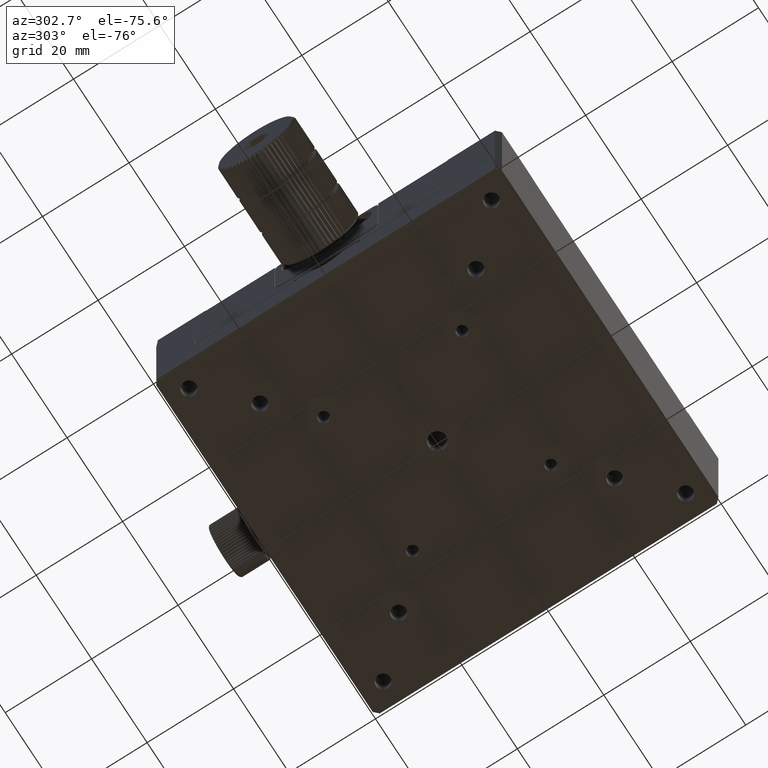
[diagram: clean part render]
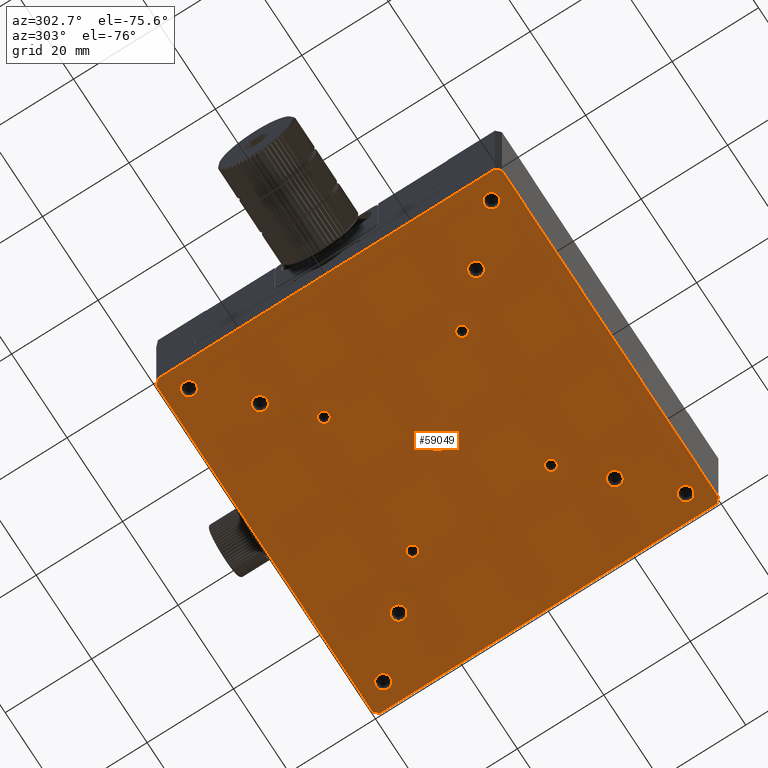
[diagram: same view with one face highlighted and labeled with its STEP entity id]
A machine part, auxiliary view. The second image highlights one B-rep face of the part: STEP entity #59049.
In plain terms, the highlighted planar face has unit normal (0, 0, -1).
Its self-contained STEP definition (entity closure, byte-faithful):
#300 = CARTESIAN_POINT ( 'NONE',  ( 34.99999999999998579, 34.99999999999999289, 130.0000000000000568 ) ) ;
#830 = EDGE_LOOP ( 'NONE', ( #80135 ) ) ;
#983 = DIRECTION ( 'NONE',  ( -2.775557561562891351E-16, -0.000000000000000000, 1.000000000000000000 ) ) ;
#1572 = CIRCLE ( 'NONE', #20015, 1.249999999999997558 ) ;
#1858 = EDGE_CURVE ( 'NONE', #68728, #68728, #1572, .T. ) ;
#2589 = VERTEX_POINT ( 'NONE', #29412 ) ;
#3653 = VERTEX_POINT ( 'NONE', #56900 ) ;
#3684 = CARTESIAN_POINT ( 'NONE',  ( 24.99999999999997158, 24.99999999999999289, 130.0000000000000568 ) ) ;
#3788 = VERTEX_POINT ( 'NONE', #41767 ) ;
#4898 = FACE_BOUND ( 'NONE', #75570, .T. ) ;
#4947 = EDGE_CURVE ( 'NONE', #40162, #40162, #10067, .T. ) ;
#6249 = CARTESIAN_POINT ( 'NONE',  ( 14.74999999999996803, 16.00000000000000000, 130.0000000000000568 ) ) ;
#6409 = VECTOR ( 'NONE', #69767, 1000.000000000000000 ) ;
#7252 = EDGE_LOOP ( 'NONE', ( #11186 ) ) ;
#7362 = EDGE_CURVE ( 'NONE', #31241, #31241, #18019, .T. ) ;
#7863 = DIRECTION ( 'NONE',  ( -2.775557561562891351E-16, -0.000000000000000000, 1.000000000000000000 ) ) ;
#8135 = AXIS2_PLACEMENT_3D ( 'NONE', #300, #19662, #63787 ) ;
#8661 = AXIS2_PLACEMENT_3D ( 'NONE', #19040, #44185, #19447 ) ;
#9005 = LINE ( 'NONE', #52291, #33538 ) ;
#9314 = ORIENTED_EDGE ( 'NONE', *, *, #58677, .T. ) ;
#9464 = EDGE_CURVE ( 'NONE', #81104, #26008, #14150, .T. ) ;
#9875 = AXIS2_PLACEMENT_3D ( 'NONE', #72209, #78409, #42097 ) ;
#10067 = CIRCLE ( 'NONE', #11423, 1.649999999999995248 ) ;
#10386 = EDGE_LOOP ( 'NONE', ( #17789 ) ) ;
#10697 = FACE_BOUND ( 'NONE', #45147, .T. ) ;
#10968 = EDGE_LOOP ( 'NONE', ( #77811 ) ) ;
#11186 = ORIENTED_EDGE ( 'NONE', *, *, #75827, .T. ) ;
#11423 = AXIS2_PLACEMENT_3D ( 'NONE', #51042, #25090, #25920 ) ;
#11523 = FACE_BOUND ( 'NONE', #7252, .T. ) ;
#11926 = PLANE ( 'NONE',  #77738 ) ;
#11966 = AXIS2_PLACEMENT_3D ( 'NONE', #46994, #72158, #61407 ) ;
#12510 = ORIENTED_EDGE ( 'NONE', *, *, #18190, .T. ) ;
#13531 = ORIENTED_EDGE ( 'NONE', *, *, #61982, .T. ) ;
#13676 = VERTEX_POINT ( 'NONE', #51589 ) ;
#14150 = LINE ( 'NONE', #39326, #65613 ) ;
#14198 = CARTESIAN_POINT ( 'NONE',  ( 38.99999999999998579, 39.99999999999997158, 130.0000000000000568 ) ) ;
#14227 = AXIS2_PLACEMENT_3D ( 'NONE', #61618, #73981, #42653 ) ;
#14457 = DIRECTION ( 'NONE',  ( -1.000000000000000000, 0.000000000000000000, 0.000000000000000000 ) ) ;
#14458 = EDGE_CURVE ( 'NONE', #58706, #58706, #31910, .T. ) ;
#15236 = EDGE_CURVE ( 'NONE', #64079, #64079, #16151, .T. ) ;
#15691 = DIRECTION ( 'NONE',  ( -2.775557561562891351E-16, -0.000000000000000000, 1.000000000000000000 ) ) ;
#15859 = CIRCLE ( 'NONE', #44794, 1.999999999999999112 ) ;
#16151 = CIRCLE ( 'NONE', #58298, 1.649999999999995248 ) ;
#16669 = ORIENTED_EDGE ( 'NONE', *, *, #49726, .F. ) ;
#16904 = DIRECTION ( 'NONE',  ( -1.000000000000000000, 0.000000000000000000, -2.775557561562891351E-16 ) ) ;
#17789 = ORIENTED_EDGE ( 'NONE', *, *, #24135, .T. ) ;
#17887 = EDGE_LOOP ( 'NONE', ( #40882 ) ) ;
#18019 = CIRCLE ( 'NONE', #69402, 1.649999999999998579 ) ;
#18190 = EDGE_CURVE ( 'NONE', #51031, #71711, #9005, .T. ) ;
#18487 = CARTESIAN_POINT ( 'NONE',  ( -16.00000000000003553, 16.00000000000000000, 130.0000000000000568 ) ) ;
#18860 = LINE ( 'NONE', #63366, #46872 ) ;
#19040 = CARTESIAN_POINT ( 'NONE',  ( 34.99999999999997868, -35.00000000000000711, 130.0000000000000568 ) ) ;
#19447 = DIRECTION ( 'NONE',  ( -1.000000000000000000, 0.000000000000000000, 0.000000000000000000 ) ) ;
#19662 = DIRECTION ( 'NONE',  ( -2.775557561562891351E-16, -0.000000000000000000, 1.000000000000000000 ) ) ;
#19823 = CARTESIAN_POINT ( 'NONE',  ( 24.99999999999997513, -25.00000000000000000, 130.0000000000000568 ) ) ;
#20015 = AXIS2_PLACEMENT_3D ( 'NONE', #18487, #43634, #68799 ) ;
#20148 = CARTESIAN_POINT ( 'NONE',  ( -39.00000000000007105, 39.99999999999997158, 130.0000000000000284 ) ) ;
#22005 = DIRECTION ( 'NONE',  ( -1.000000000000000000, 0.000000000000000000, 0.000000000000000000 ) ) ;
#22389 = DIRECTION ( 'NONE',  ( 0.000000000000000000, 1.000000000000000000, 0.000000000000000000 ) ) ;
#22563 = LINE ( 'NONE', #77462, #44451 ) ;
#22647 = ORIENTED_EDGE ( 'NONE', *, *, #56555, .T. ) ;
#23080 = FACE_BOUND ( 'NONE', #10968, .T. ) ;
#23454 = ORIENTED_EDGE ( 'NONE', *, *, #9464, .T. ) ;
#23865 = VECTOR ( 'NONE', #60543, 1000.000000000000114 ) ;
#24001 = ORIENTED_EDGE ( 'NONE', *, *, #35638, .F. ) ;
#24024 = VERTEX_POINT ( 'NONE', #24436 ) ;
#24121 = DIRECTION ( 'NONE',  ( -2.775557561562891351E-16, -0.000000000000000000, 1.000000000000000000 ) ) ;
#24135 = EDGE_CURVE ( 'NONE', #3788, #3788, #33455, .T. ) ;
#24436 = CARTESIAN_POINT ( 'NONE',  ( -36.65000000000002700, -35.00000000000000000, 130.0000000000000568 ) ) ;
#25027 = CARTESIAN_POINT ( 'NONE',  ( -17.25000000000003197, 16.00000000000000000, 130.0000000000000568 ) ) ;
#25090 = DIRECTION ( 'NONE',  ( -2.775557561562891351E-16, -0.000000000000000000, 1.000000000000000000 ) ) ;
#25290 = ORIENTED_EDGE ( 'NONE', *, *, #81359, .T. ) ;
#25920 = DIRECTION ( 'NONE',  ( -1.000000000000000000, 0.000000000000000000, 0.000000000000000000 ) ) ;
#26008 = VERTEX_POINT ( 'NONE', #14198 ) ;
#26048 = CARTESIAN_POINT ( 'NONE',  ( 39.99999999999997158, -39.00000000000003553, 130.0000000000000568 ) ) ;
#26863 = EDGE_LOOP ( 'NONE', ( #80049 ) ) ;
#28348 = EDGE_LOOP ( 'NONE', ( #9314 ) ) ;
#28486 = FACE_BOUND ( 'NONE', #830, .T. ) ;
#28837 = LINE ( 'NONE', #66718, #23865 ) ;
#28879 = DIRECTION ( 'NONE',  ( -1.000000000000000000, 0.000000000000000000, 0.000000000000000000 ) ) ;
#29412 = CARTESIAN_POINT ( 'NONE',  ( -2.000000000000042188, 0.000000000000000000, 130.0000000000000568 ) ) ;
#29584 = EDGE_CURVE ( 'NONE', #3653, #68292, #73914, .T. ) ;
#29827 = VERTEX_POINT ( 'NONE', #54928 ) ;
#30102 = FACE_BOUND ( 'NONE', #59354, .T. ) ;
#30614 = DIRECTION ( 'NONE',  ( -1.000000000000000000, 0.000000000000000000, 0.000000000000000000 ) ) ;
#31241 = VERTEX_POINT ( 'NONE', #71475 ) ;
#31910 = CIRCLE ( 'NONE', #8135, 1.649999999999998579 ) ;
#32720 = ORIENTED_EDGE ( 'NONE', *, *, #58842, .F. ) ;
#32742 = CIRCLE ( 'NONE', #14227, 1.649999999999995248 ) ;
#33194 = CARTESIAN_POINT ( 'NONE',  ( -40.00000000000002842, -40.00000000000004263, 130.0000000000000284 ) ) ;
#33455 = CIRCLE ( 'NONE', #9875, 1.249999999999997558 ) ;
#33538 = VECTOR ( 'NONE', #47285, 1000.000000000000000 ) ;
#33658 = EDGE_LOOP ( 'NONE', ( #23454, #16669, #12510, #24001, #25290, #46141, #13531, #32720 ) ) ;
#35181 = EDGE_CURVE ( 'NONE', #2589, #2589, #15859, .T. ) ;
#35351 = ORIENTED_EDGE ( 'NONE', *, *, #71434, .T. ) ;
#35638 = EDGE_CURVE ( 'NONE', #56201, #71711, #28837, .T. ) ;
#35778 = CARTESIAN_POINT ( 'NONE',  ( -40.00000000000002842, 39.00000000000000000, 130.0000000000000284 ) ) ;
#38128 = DIRECTION ( 'NONE',  ( -1.000000000000000000, 0.000000000000000000, 0.000000000000000000 ) ) ;
#39234 = CARTESIAN_POINT ( 'NONE',  ( 15.99999999999996625, 16.00000000000000000, 130.0000000000000568 ) ) ;
#39326 = CARTESIAN_POINT ( 'NONE',  ( 39.99999999999997158, 39.99999999999997158, 130.0000000000000568 ) ) ;
#40162 = VERTEX_POINT ( 'NONE', #69139 ) ;
#40457 = FACE_OUTER_BOUND ( 'NONE', #33658, .T. ) ;
#40841 = FACE_BOUND ( 'NONE', #67310, .T. ) ;
#40882 = ORIENTED_EDGE ( 'NONE', *, *, #4947, .T. ) ;
#40901 = CIRCLE ( 'NONE', #64607, 1.249999999999997558 ) ;
#41456 = CARTESIAN_POINT ( 'NONE',  ( -35.00000000000003553, -35.00000000000000000, 130.0000000000000568 ) ) ;
#41767 = CARTESIAN_POINT ( 'NONE',  ( -17.25000000000003197, -16.00000000000000000, 130.0000000000000568 ) ) ;
#42097 = DIRECTION ( 'NONE',  ( -1.000000000000000000, 0.000000000000000000, 0.000000000000000000 ) ) ;
#42305 = ORIENTED_EDGE ( 'NONE', *, *, #35181, .T. ) ;
#42590 = CARTESIAN_POINT ( 'NONE',  ( -40.00000000000002842, -39.00000000000007105, 130.0000000000000568 ) ) ;
#42653 = DIRECTION ( 'NONE',  ( -1.000000000000000000, 0.000000000000000000, 0.000000000000000000 ) ) ;
#43634 = DIRECTION ( 'NONE',  ( -2.775557561562891351E-16, -0.000000000000000000, 1.000000000000000000 ) ) ;
#44000 = DIRECTION ( 'NONE',  ( -0.7071067811865422437, 0.7071067811865529018, 0.000000000000000000 ) ) ;
#44185 = DIRECTION ( 'NONE',  ( -2.775557561562891351E-16, -0.000000000000000000, 1.000000000000000000 ) ) ;
#44451 = VECTOR ( 'NONE', #64668, 1000.000000000000000 ) ;
#44794 = AXIS2_PLACEMENT_3D ( 'NONE', #80836, #66906, #22005 ) ;
#44993 = CARTESIAN_POINT ( 'NONE',  ( 14.74999999999996803, -16.00000000000000000, 130.0000000000000568 ) ) ;
#45147 = EDGE_LOOP ( 'NONE', ( #58748 ) ) ;
#45165 = AXIS2_PLACEMENT_3D ( 'NONE', #41456, #24121, #62036 ) ;
#46141 = ORIENTED_EDGE ( 'NONE', *, *, #29584, .F. ) ;
#46187 = CIRCLE ( 'NONE', #11966, 1.249999999999997558 ) ;
#46192 = CARTESIAN_POINT ( 'NONE',  ( 33.34999999999998721, -35.00000000000000711, 130.0000000000000568 ) ) ;
#46872 = VECTOR ( 'NONE', #44000, 1000.000000000000000 ) ;
#46994 = CARTESIAN_POINT ( 'NONE',  ( 15.99999999999996625, -16.00000000000000000, 130.0000000000000568 ) ) ;
#47285 = DIRECTION ( 'NONE',  ( -0.000000000000000000, -1.000000000000000000, -0.000000000000000000 ) ) ;
#47800 = CARTESIAN_POINT ( 'NONE',  ( 38.99999999999997868, -40.00000000000003553, 130.0000000000000568 ) ) ;
#48206 = CARTESIAN_POINT ( 'NONE',  ( 39.99999999999997158, -40.00000000000004263, 130.0000000000000568 ) ) ;
#49726 = EDGE_CURVE ( 'NONE', #51031, #26008, #18860, .T. ) ;
#51031 = VERTEX_POINT ( 'NONE', #63377 ) ;
#51042 = CARTESIAN_POINT ( 'NONE',  ( -25.00000000000003908, -25.00000000000000000, 130.0000000000000568 ) ) ;
#51589 = CARTESIAN_POINT ( 'NONE',  ( 23.34999999999998010, -25.00000000000000000, 130.0000000000000568 ) ) ;
#51979 = LINE ( 'NONE', #70956, #72473 ) ;
#52291 = CARTESIAN_POINT ( 'NONE',  ( 39.99999999999997158, -40.00000000000004263, 130.0000000000000568 ) ) ;
#52814 = VECTOR ( 'NONE', #22389, 1000.000000000000000 ) ;
#53437 = CIRCLE ( 'NONE', #8661, 1.649999999999991696 ) ;
#54398 = FACE_BOUND ( 'NONE', #17887, .T. ) ;
#54494 = CARTESIAN_POINT ( 'NONE',  ( -39.00000000000006395, -40.00000000000003553, 130.0000000000000568 ) ) ;
#54928 = CARTESIAN_POINT ( 'NONE',  ( -26.65000000000003055, 24.99999999999999289, 130.0000000000000568 ) ) ;
#55270 = EDGE_CURVE ( 'NONE', #29827, #29827, #32742, .T. ) ;
#55622 = FACE_BOUND ( 'NONE', #10386, .T. ) ;
#55720 = DIRECTION ( 'NONE',  ( -2.775557561562891351E-16, -0.000000000000000000, 1.000000000000000000 ) ) ;
#56201 = VERTEX_POINT ( 'NONE', #47800 ) ;
#56555 = EDGE_CURVE ( 'NONE', #24024, #24024, #80726, .T. ) ;
#56900 = CARTESIAN_POINT ( 'NONE',  ( -40.00000000000002842, -39.00000000000007105, 130.0000000000000284 ) ) ;
#58298 = AXIS2_PLACEMENT_3D ( 'NONE', #3684, #15691, #28879 ) ;
#58677 = EDGE_CURVE ( 'NONE', #62760, #62760, #40901, .T. ) ;
#58706 = VERTEX_POINT ( 'NONE', #81509 ) ;
#58748 = ORIENTED_EDGE ( 'NONE', *, *, #1858, .T. ) ;
#58842 = EDGE_CURVE ( 'NONE', #81104, #72330, #51979, .T. ) ;
#59049 = ADVANCED_FACE ( 'NONE', ( #40457, #72165, #40841, #28486, #78759, #54398, #30102, #61814, #23080, #55622, #10697, #75001, #11523, #4898 ), #11926, .T. ) ;
#59354 = EDGE_LOOP ( 'NONE', ( #74985 ) ) ;
#60543 = DIRECTION ( 'NONE',  ( 0.7071067811865470176, 0.7071067811865479058, 0.000000000000000000 ) ) ;
#61407 = DIRECTION ( 'NONE',  ( -1.000000000000000000, 0.000000000000000000, 0.000000000000000000 ) ) ;
#61618 = CARTESIAN_POINT ( 'NONE',  ( -25.00000000000003553, 24.99999999999999289, 130.0000000000000568 ) ) ;
#61814 = FACE_BOUND ( 'NONE', #26863, .T. ) ;
#61982 = EDGE_CURVE ( 'NONE', #3653, #72330, #78893, .T. ) ;
#62036 = DIRECTION ( 'NONE',  ( -1.000000000000000000, 0.000000000000000000, 0.000000000000000000 ) ) ;
#62541 = EDGE_CURVE ( 'NONE', #13676, #13676, #68714, .T. ) ;
#62760 = VERTEX_POINT ( 'NONE', #6249 ) ;
#63366 = CARTESIAN_POINT ( 'NONE',  ( 38.99999999999998579, 39.99999999999997158, 130.0000000000000568 ) ) ;
#63377 = CARTESIAN_POINT ( 'NONE',  ( 39.99999999999997158, 38.99999999999997158, 130.0000000000000568 ) ) ;
#63418 = AXIS2_PLACEMENT_3D ( 'NONE', #19823, #55720, #30614 ) ;
#63787 = DIRECTION ( 'NONE',  ( -1.000000000000000000, 0.000000000000000000, 0.000000000000000000 ) ) ;
#64079 = VERTEX_POINT ( 'NONE', #64878 ) ;
#64438 = DIRECTION ( 'NONE',  ( 1.000000000000000000, -0.000000000000000000, 2.775557561562891351E-16 ) ) ;
#64607 = AXIS2_PLACEMENT_3D ( 'NONE', #39234, #7863, #14457 ) ;
#64668 = DIRECTION ( 'NONE',  ( -1.000000000000000000, 0.000000000000000000, -2.775557561562891351E-16 ) ) ;
#64765 = DIRECTION ( 'NONE',  ( -0.7071067811865431318, -0.7071067811865520136, 0.000000000000000000 ) ) ;
#64878 = CARTESIAN_POINT ( 'NONE',  ( 23.34999999999997655, 24.99999999999999289, 130.0000000000000568 ) ) ;
#65613 = VECTOR ( 'NONE', #64438, 1000.000000000000000 ) ;
#66117 = ORIENTED_EDGE ( 'NONE', *, *, #7362, .T. ) ;
#66718 = CARTESIAN_POINT ( 'NONE',  ( 39.99999999999997158, -39.00000000000004263, 130.0000000000000568 ) ) ;
#66906 = DIRECTION ( 'NONE',  ( -2.775557561562891351E-16, -0.000000000000000000, 1.000000000000000000 ) ) ;
#67310 = EDGE_LOOP ( 'NONE', ( #66117 ) ) ;
#68292 = VERTEX_POINT ( 'NONE', #54494 ) ;
#68714 = CIRCLE ( 'NONE', #63418, 1.649999999999995248 ) ;
#68728 = VERTEX_POINT ( 'NONE', #25027 ) ;
#68799 = DIRECTION ( 'NONE',  ( -1.000000000000000000, 0.000000000000000000, 0.000000000000000000 ) ) ;
#69139 = CARTESIAN_POINT ( 'NONE',  ( -26.65000000000003411, -25.00000000000000000, 130.0000000000000568 ) ) ;
#69402 = AXIS2_PLACEMENT_3D ( 'NONE', #70256, #983, #38128 ) ;
#69767 = DIRECTION ( 'NONE',  ( 0.7071067811865480168, -0.7071067811865470176, 0.000000000000000000 ) ) ;
#69795 = EDGE_LOOP ( 'NONE', ( #22647 ) ) ;
#70256 = CARTESIAN_POINT ( 'NONE',  ( -35.00000000000002842, 35.00000000000000000, 130.0000000000000568 ) ) ;
#70956 = CARTESIAN_POINT ( 'NONE',  ( -39.00000000000007105, 39.99999999999997158, 130.0000000000000568 ) ) ;
#71376 = VERTEX_POINT ( 'NONE', #46192 ) ;
#71434 = EDGE_CURVE ( 'NONE', #71376, #71376, #53437, .T. ) ;
#71475 = CARTESIAN_POINT ( 'NONE',  ( -36.65000000000002700, 35.00000000000000000, 130.0000000000000568 ) ) ;
#71711 = VERTEX_POINT ( 'NONE', #26048 ) ;
#72021 = EDGE_LOOP ( 'NONE', ( #35351 ) ) ;
#72158 = DIRECTION ( 'NONE',  ( -2.775557561562891351E-16, -0.000000000000000000, 1.000000000000000000 ) ) ;
#72165 = FACE_BOUND ( 'NONE', #69795, .T. ) ;
#72209 = CARTESIAN_POINT ( 'NONE',  ( -16.00000000000003553, -16.00000000000000000, 130.0000000000000568 ) ) ;
#72330 = VERTEX_POINT ( 'NONE', #35778 ) ;
#72473 = VECTOR ( 'NONE', #64765, 1000.000000000000000 ) ;
#73914 = LINE ( 'NONE', #42590, #6409 ) ;
#73981 = DIRECTION ( 'NONE',  ( -2.775557561562891351E-16, -0.000000000000000000, 1.000000000000000000 ) ) ;
#74985 = ORIENTED_EDGE ( 'NONE', *, *, #55270, .T. ) ;
#75001 = FACE_BOUND ( 'NONE', #28348, .T. ) ;
#75570 = EDGE_LOOP ( 'NONE', ( #42305 ) ) ;
#75827 = EDGE_CURVE ( 'NONE', #77167, #77167, #46187, .T. ) ;
#77167 = VERTEX_POINT ( 'NONE', #44993 ) ;
#77462 = CARTESIAN_POINT ( 'NONE',  ( 39.99999999999997158, -40.00000000000004263, 130.0000000000000568 ) ) ;
#77738 = AXIS2_PLACEMENT_3D ( 'NONE', #48206, #79989, #16904 ) ;
#77811 = ORIENTED_EDGE ( 'NONE', *, *, #62541, .T. ) ;
#78409 = DIRECTION ( 'NONE',  ( -2.775557561562891351E-16, -0.000000000000000000, 1.000000000000000000 ) ) ;
#78759 = FACE_BOUND ( 'NONE', #72021, .T. ) ;
#78893 = LINE ( 'NONE', #33194, #52814 ) ;
#79989 = DIRECTION ( 'NONE',  ( 2.775557561562891351E-16, 0.000000000000000000, -1.000000000000000000 ) ) ;
#80049 = ORIENTED_EDGE ( 'NONE', *, *, #15236, .T. ) ;
#80135 = ORIENTED_EDGE ( 'NONE', *, *, #14458, .T. ) ;
#80726 = CIRCLE ( 'NONE', #45165, 1.649999999999991696 ) ;
#80836 = CARTESIAN_POINT ( 'NONE',  ( -4.302114220422483487E-14, 0.000000000000000000, 130.0000000000000568 ) ) ;
#81104 = VERTEX_POINT ( 'NONE', #20148 ) ;
#81359 = EDGE_CURVE ( 'NONE', #56201, #68292, #22563, .T. ) ;
#81509 = CARTESIAN_POINT ( 'NONE',  ( 33.34999999999998721, 34.99999999999999289, 130.0000000000000568 ) ) ;